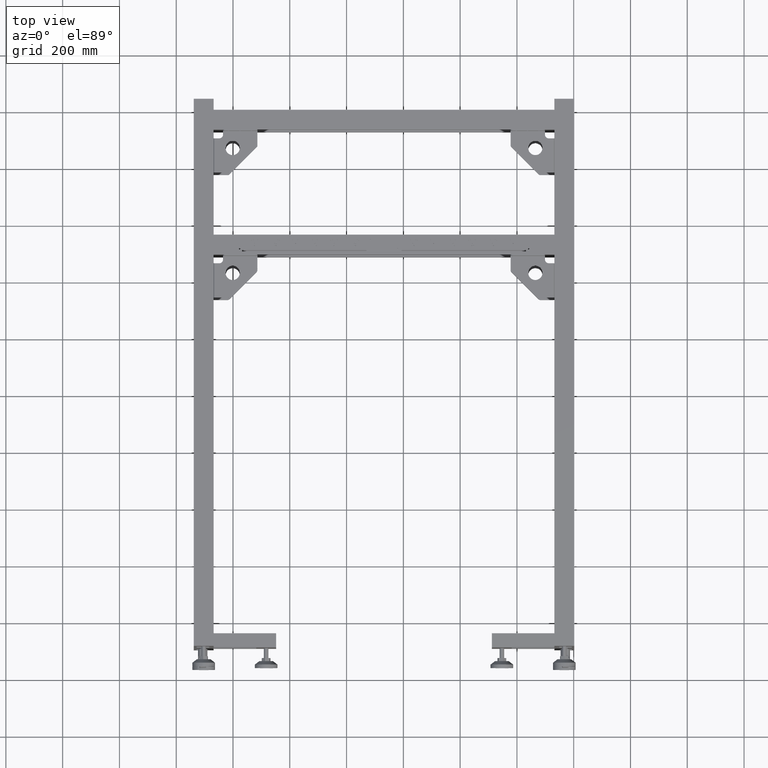
[diagram: clean part render]
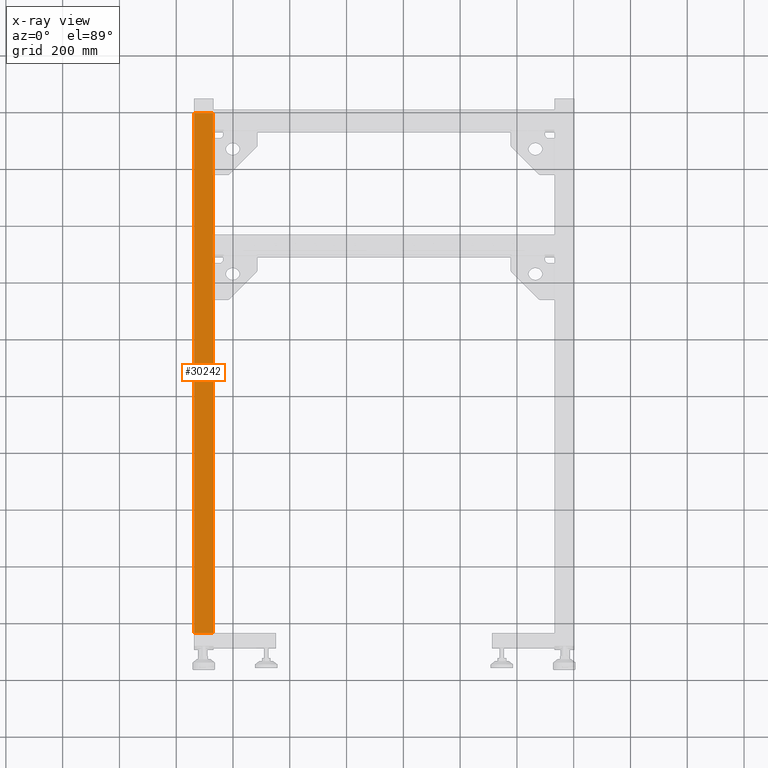
[diagram: x-ray — body ghosted, one internal face saturated and labeled with its STEP entity id]
A machine part, top view, then the same camera in x-ray: the body is ghosted and one INTERNAL B-rep face — a face not visible from any outside direction — is saturated and labeled: STEP entity #30242.
In plain terms, the highlighted planar face has unit normal (-0, 0, 1).
Its self-contained STEP definition (entity closure, byte-faithful):
#514 = DIRECTION ( 'NONE',  ( -0.000000000000000000, 0.000000000000000000, 1.000000000000000000 ) ) ;
#3444 = DIRECTION ( 'NONE',  ( -1.000000000000000078E-15, -1.000000000000000000, -0.000000000000000000 ) ) ;
#6608 = EDGE_CURVE ( 'NONE', #8615, #31129, #51545, .T. ) ;
#7054 = AXIS2_PLACEMENT_3D ( 'NONE', #56197, #514, #25314 ) ;
#8615 = VERTEX_POINT ( 'NONE', #21794 ) ;
#8689 = VECTOR ( 'NONE', #48814, 1000.000000000000000 ) ;
#9145 = LINE ( 'NONE', #34315, #65869 ) ;
#10840 = ORIENTED_EDGE ( 'NONE', *, *, #69347, .T. ) ;
#11190 = CARTESIAN_POINT ( 'NONE',  ( -1270.172487437185055, 986.4410804020109254, 201.9999999999999716 ) ) ;
#12617 = LINE ( 'NONE', #18315, #8689 ) ;
#12707 = FACE_OUTER_BOUND ( 'NONE', #75888, .T. ) ;
#15057 = CARTESIAN_POINT ( 'NONE',  ( -1270.172487437185055, -844.5589195979888473, 201.9999999999999716 ) ) ;
#17938 = ORIENTED_EDGE ( 'NONE', *, *, #68189, .T. ) ;
#18315 = CARTESIAN_POINT ( 'NONE',  ( -1336.172487437185055, 986.4410804020136538, 201.9999999999999716 ) ) ;
#20562 = VECTOR ( 'NONE', #24731, 1000.000000000000000 ) ;
#20563 = CARTESIAN_POINT ( 'NONE',  ( -1336.172487437185055, 986.4410804020136538, 201.9999999999999716 ) ) ;
#20635 = DIRECTION ( 'NONE',  ( 1.000000000000000000, 0.000000000000000000, 0.000000000000000000 ) ) ;
#21794 = CARTESIAN_POINT ( 'NONE',  ( -1336.172487437185055, -844.5589195979888473, 201.9999999999999716 ) ) ;
#22790 = VERTEX_POINT ( 'NONE', #11190 ) ;
#24731 = DIRECTION ( 'NONE',  ( -1.000000000000000078E-15, -1.000000000000000000, -0.000000000000000000 ) ) ;
#25314 = DIRECTION ( 'NONE',  ( 1.000000000000000000, 0.000000000000000000, 0.000000000000000000 ) ) ;
#27001 = VERTEX_POINT ( 'NONE', #20563 ) ;
#30242 = ADVANCED_FACE ( 'NONE', ( #12707 ), #37499, .T. ) ;
#31129 = VERTEX_POINT ( 'NONE', #15057 ) ;
#31249 = CARTESIAN_POINT ( 'NONE',  ( -1336.172487437185055, -844.5589195979888473, 201.9999999999999716 ) ) ;
#34315 = CARTESIAN_POINT ( 'NONE',  ( -1270.172487437185055, 986.4410804020136538, 201.9999999999999716 ) ) ;
#37499 = PLANE ( 'NONE',  #7054 ) ;
#48814 = DIRECTION ( 'NONE',  ( -1.000000000000000000, 1.682156097916908074E-15, -0.000000000000000000 ) ) ;
#49937 = LINE ( 'NONE', #80375, #20562 ) ;
#51545 = LINE ( 'NONE', #31249, #62693 ) ;
#52093 = ORIENTED_EDGE ( 'NONE', *, *, #68715, .F. ) ;
#56197 = CARTESIAN_POINT ( 'NONE',  ( -1336.172487437185055, 986.4410804020136538, 201.9999999999999716 ) ) ;
#62693 = VECTOR ( 'NONE', #20635, 1000.000000000000000 ) ;
#63718 = ORIENTED_EDGE ( 'NONE', *, *, #6608, .T. ) ;
#65869 = VECTOR ( 'NONE', #3444, 1000.000000000000000 ) ;
#68189 = EDGE_CURVE ( 'NONE', #22790, #27001, #12617, .T. ) ;
#68715 = EDGE_CURVE ( 'NONE', #22790, #31129, #9145, .T. ) ;
#69347 = EDGE_CURVE ( 'NONE', #27001, #8615, #49937, .T. ) ;
#75888 = EDGE_LOOP ( 'NONE', ( #10840, #63718, #52093, #17938 ) ) ;
#80375 = CARTESIAN_POINT ( 'NONE',  ( -1336.172487437185055, 986.4410804020136538, 201.9999999999999716 ) ) ;